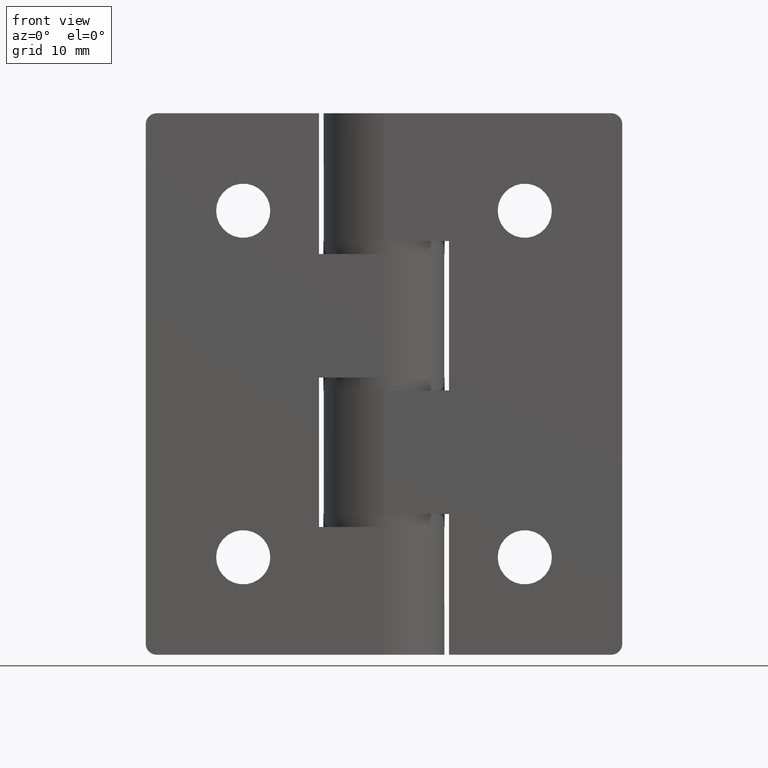
[diagram: clean part render]
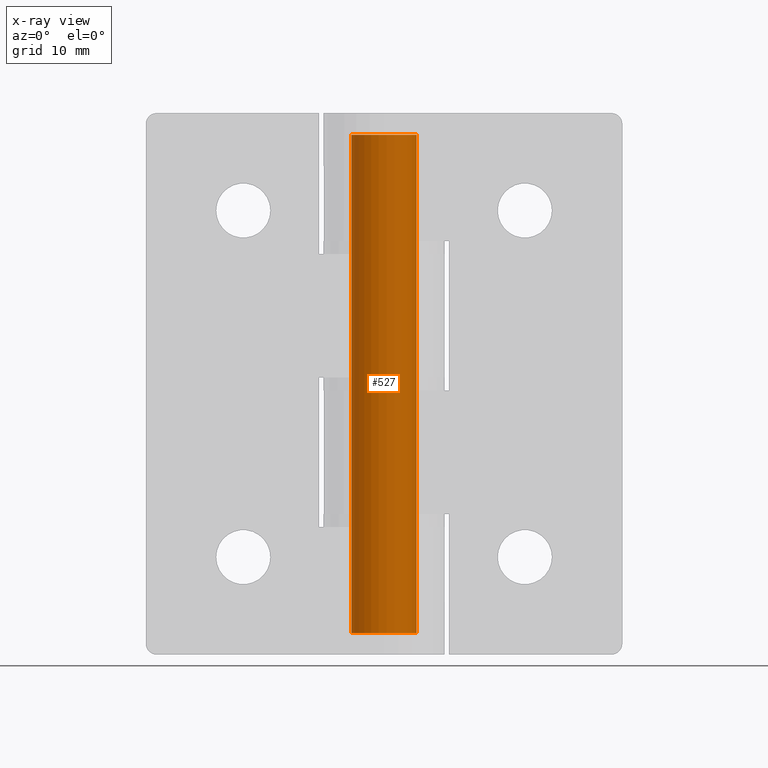
[diagram: x-ray — body ghosted, one internal face saturated and labeled with its STEP entity id]
A machine part, front view, then the same camera in x-ray: the body is ghosted and one INTERNAL B-rep face — a face not visible from any outside direction — is saturated and labeled: STEP entity #527.
In plain terms, the highlighted cylindrical surface (bore or boss wall) has radius 3 mm, axis along (0, 0, -1).
Its self-contained STEP definition (entity closure, byte-faithful):
#62=FACE_BOUND('',#158,.T.);
#111=FACE_OUTER_BOUND('',#157,.T.);
#157=EDGE_LOOP('',(#475));
#158=EDGE_LOOP('',(#476));
#254=CIRCLE('',#589,3.);
#255=CIRCLE('',#590,3.);
#298=VERTEX_POINT('',#915);
#299=VERTEX_POINT('',#917);
#359=EDGE_CURVE('',#298,#298,#254,.T.);
#360=EDGE_CURVE('',#299,#299,#255,.T.);
#475=ORIENTED_EDGE('',*,*,#359,.F.);
#476=ORIENTED_EDGE('',*,*,#360,.T.);
#498=CYLINDRICAL_SURFACE('',#588,3.);
#527=ADVANCED_FACE('',(#111,#62),#498,.T.);
#588=AXIS2_PLACEMENT_3D('',#914,#742,#743);
#589=AXIS2_PLACEMENT_3D('',#916,#744,#745);
#590=AXIS2_PLACEMENT_3D('',#918,#746,#747);
#742=DIRECTION('center_axis',(0.,0.,-1.));
#743=DIRECTION('ref_axis',(-1.,0.,0.));
#744=DIRECTION('center_axis',(0.,0.,-1.));
#745=DIRECTION('ref_axis',(-1.,0.,0.));
#746=DIRECTION('center_axis',(0.,0.,-1.));
#747=DIRECTION('ref_axis',(-1.,0.,0.));
#914=CARTESIAN_POINT('Origin',(0.,0.,0.));
#915=CARTESIAN_POINT('',(3.,3.67394039744206E-16,-46.));
#916=CARTESIAN_POINT('Origin',(0.,0.,-46.));
#917=CARTESIAN_POINT('',(3.,3.67394039744206E-16,0.));
#918=CARTESIAN_POINT('Origin',(0.,0.,0.));